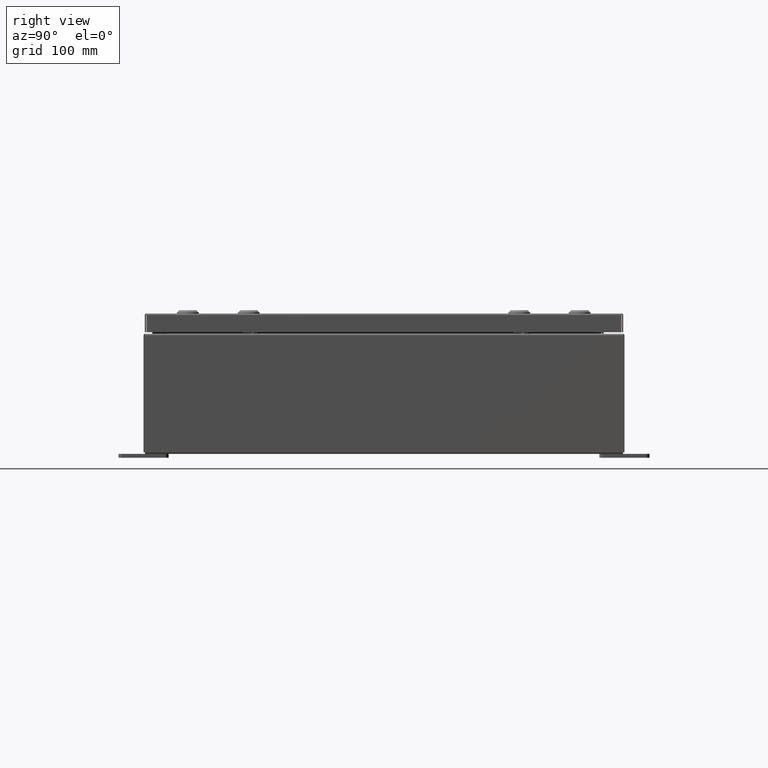
[diagram: clean part render]
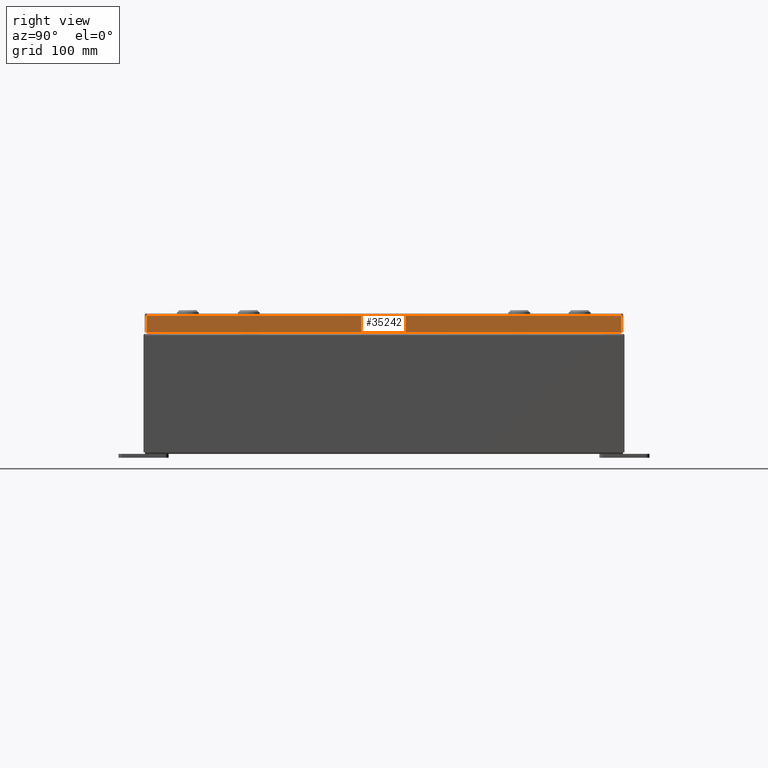
[diagram: same view with one face highlighted and labeled with its STEP entity id]
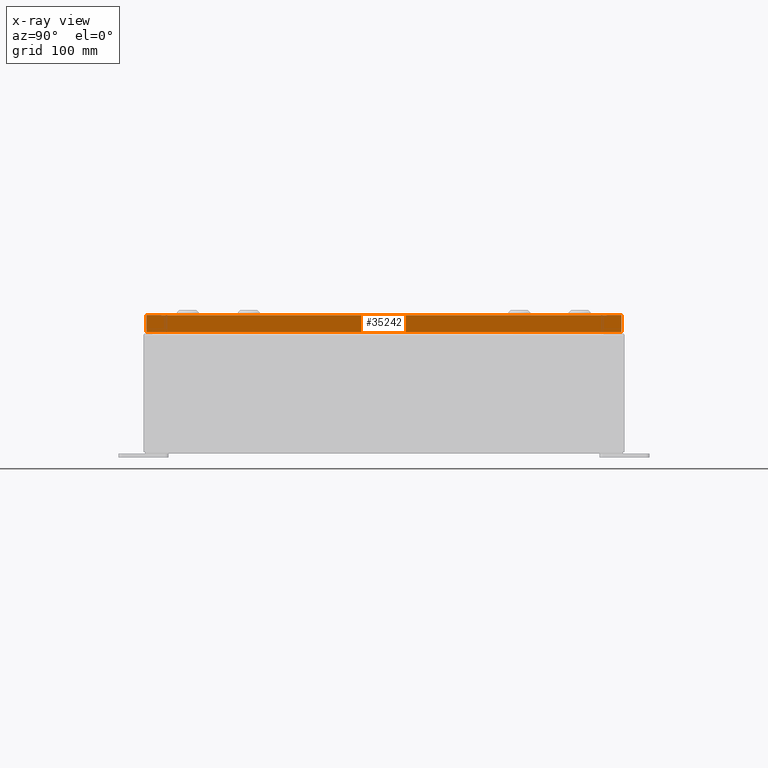
[diagram: x-ray of the same camera — body ghosted, the highlighted face saturated]
A machine part, right view. The second image highlights one B-rep face of the part: STEP entity #35242.
The next image is the same camera in x-ray: the body ghosted, the highlighted face saturated — about 0% of this face is hidden behind the body in this view.
In plain terms, the highlighted planar face has unit normal (1, 0, 0).
Its self-contained STEP definition (entity closure, byte-faithful):
#204 = FACE_OUTER_BOUND ( 'NONE', #61561, .T. ) ;
#1516 = CARTESIAN_POINT ( 'NONE',  ( 11.93750000000000000, 0.0000000000000000000, -0.08770000000000008300 ) ) ;
#2609 = DIRECTION ( 'NONE',  ( 1.000000000000000000, 0.0000000000000000000, 2.532419924601866100E-015 ) ) ;
#2821 = CARTESIAN_POINT ( 'NONE',  ( 11.93750000000000000, 11.84865786437626800, -0.08770000000000008300 ) ) ;
#3339 = VECTOR ( 'NONE', #37679, 39.37007874015748100 ) ;
#3399 = CARTESIAN_POINT ( 'NONE',  ( 11.93750000000000000, -11.84865786437626900, -0.07469999999999980800 ) ) ;
#4270 = ORIENTED_EDGE ( 'NONE', *, *, #48610, .T. ) ;
#7776 = EDGE_CURVE ( 'NONE', #36659, #11862, #39363, .T. ) ;
#8722 = AXIS2_PLACEMENT_3D ( 'NONE', #56193, #2609, #36902 ) ;
#11862 = VERTEX_POINT ( 'NONE', #40526 ) ;
#16275 = CARTESIAN_POINT ( 'NONE',  ( 11.93750000000000200, -11.84865786437626200, -0.9376999999999997600 ) ) ;
#21000 = ORIENTED_EDGE ( 'NONE', *, *, #23966, .F. ) ;
#21832 = CARTESIAN_POINT ( 'NONE',  ( 11.93750000000000000, 11.84865786437626900, 1.132303121535597100E-013 ) ) ;
#21909 = VECTOR ( 'NONE', #30876, 39.37007874015748100 ) ;
#23966 = EDGE_CURVE ( 'NONE', #58492, #36659, #37636, .T. ) ;
#26393 = ORIENTED_EDGE ( 'NONE', *, *, #31054, .T. ) ;
#26618 = DIRECTION ( 'NONE',  ( 0.0000000000000000000, -1.000000000000000000, 0.0000000000000000000 ) ) ;
#27082 = PLANE ( 'NONE',  #8722 ) ;
#30300 = CARTESIAN_POINT ( 'NONE',  ( 11.93750000000000200, 11.84865786437627300, -0.9376999999999997600 ) ) ;
#30415 = LINE ( 'NONE', #21832, #43422 ) ;
#30876 = DIRECTION ( 'NONE',  ( 0.0000000000000000000, -1.000000000000000000, 0.0000000000000000000 ) ) ;
#31054 = EDGE_CURVE ( 'NONE', #36089, #11862, #34874, .T. ) ;
#34874 = LINE ( 'NONE', #1516, #21909 ) ;
#35242 = ADVANCED_FACE ( 'NONE', ( #204 ), #27082, .T. ) ;
#36089 = VERTEX_POINT ( 'NONE', #2821 ) ;
#36659 = VERTEX_POINT ( 'NONE', #16275 ) ;
#36902 = DIRECTION ( 'NONE',  ( 2.532419924601866100E-015, 0.0000000000000000000, -1.000000000000000000 ) ) ;
#37636 = LINE ( 'NONE', #51041, #62196 ) ;
#37679 = DIRECTION ( 'NONE',  ( -2.532419924601866100E-015, -6.982962677686265900E-015, 1.000000000000000000 ) ) ;
#39363 = LINE ( 'NONE', #3399, #3339 ) ;
#40526 = CARTESIAN_POINT ( 'NONE',  ( 11.93750000000000000, -11.84865786437626900, -0.08770000000000008300 ) ) ;
#43422 = VECTOR ( 'NONE', #56065, 39.37007874015748100 ) ;
#44468 = ORIENTED_EDGE ( 'NONE', *, *, #7776, .F. ) ;
#48610 = EDGE_CURVE ( 'NONE', #58492, #36089, #30415, .T. ) ;
#51041 = CARTESIAN_POINT ( 'NONE',  ( 11.93750000000000200, -11.93750000000000000, -0.9376999999999997600 ) ) ;
#56065 = DIRECTION ( 'NONE',  ( -2.532419924601866100E-015, -6.982962677686265900E-015, 1.000000000000000000 ) ) ;
#56193 = CARTESIAN_POINT ( 'NONE',  ( 11.93750000000000000, 0.0000000000000000000, 3.049157650594635900E-014 ) ) ;
#58492 = VERTEX_POINT ( 'NONE', #30300 ) ;
#61561 = EDGE_LOOP ( 'NONE', ( #44468, #21000, #4270, #26393 ) ) ;
#62196 = VECTOR ( 'NONE', #26618, 39.37007874015748100 ) ;